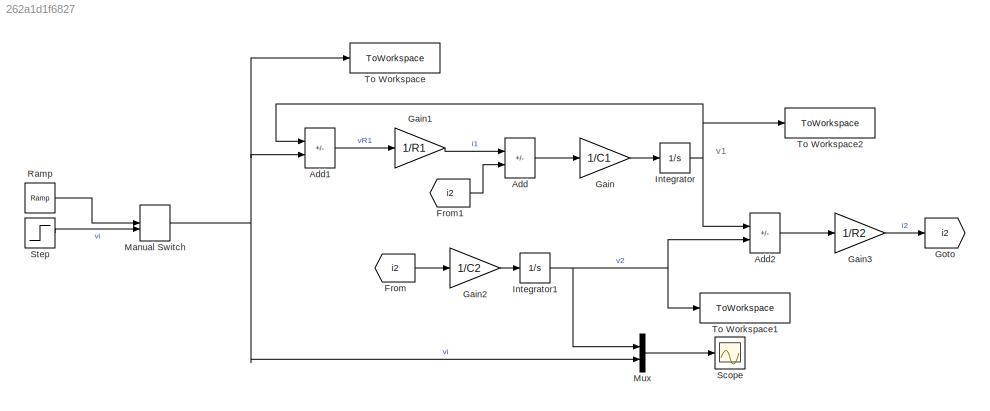
MODEL slx_262a1d1f6827
KIND model
CONFIG AbsTol = auto
CONFIG EnableMultiTasking = off
CONFIG FixedStep = 0.01
CONFIG MaxStep = auto
CONFIG MinStep = auto
CONFIG RelTol = 1e-3
CONFIG SampleTimeConstraint = Unconstrained
CONFIG SolverName = VariableStepAuto
CONFIG StartTime = 0.0
CONFIG StopTime = 40
BLOCK [Sum] Add
  IconShape = rectangular
  Inputs = +-
BLOCK [Sum] Add1
  IconShape = rectangular
  Inputs = -+
BLOCK [Sum] Add2
  IconShape = rectangular
  Inputs = +-
BLOCK [From] From
  GotoTag = i2
BLOCK [From] From1
  GotoTag = i2
BLOCK [Gain] Gain
  Gain = 1/C1
BLOCK [Gain] Gain1
  Gain = 1/R1
BLOCK [Gain] Gain2
  Gain = 1/C2
BLOCK [Gain] Gain3
  Gain = 1/R2
BLOCK [Goto] Goto
  GotoTag = i2
BLOCK [Integrator] Integrator
BLOCK [Integrator] Integrator1
BLOCK [ManualSwitch] Manual Switch
  CurrentSetting = 0
BLOCK [Mux] Mux
  DisplayOption = bar
  Inputs = 2
BLOCK [Reference] Ramp  REF=simulink/Sources/Ramp
  SourceBlock = simulink/Sources/Ramp
  SourceType = Ramp
BLOCK [Scope] Scope
  Floating = off
  NumInputPorts = 1
  ScopeSpecificationString = Simulink.scopes.TimeScopeBlockCfg('CurrentConfiguration', extmgr.ConfigurationSet(extmgr.Configuration('Core','General UI',true),extmgr.Configuration('Core','Source UI',true),extmgr.Configuration('Sources','WiredSimulink',true),extmgr.Configuration('Visuals','Time Domain',true,'SerializedDisplays',{struct('MinYLimReal','-1.21118','MaxYLimReal','8.29756','YLabelReal','','MinYLimMag','0.00000','MaxY...<+1404ch>
BLOCK [Step] Step
  After = 7
  SampleTime = 0
BLOCK [ToWorkspace] To Workspace
  FixptAsFi = on
  MaxDataPoints = inf
  SampleTime = -1
  SaveFormat = Structure With Time
  VariableName = vin
BLOCK [ToWorkspace] To Workspace1
  FixptAsFi = on
  MaxDataPoints = inf
  SampleTime = -1
  SaveFormat = Structure With Time
  VariableName = v2
BLOCK [ToWorkspace] To Workspace2
  FixptAsFi = on
  MaxDataPoints = inf
  SampleTime = -1
  SaveFormat = Structure With Time
  VariableName = v1
ANNOTATION (root): v1
LINE Add1:1 -> Gain1:1
LINE Add2:1 -> Gain3:1
LINE Add:1 -> Gain:1
LINE From1:1 -> Add:2
LINE From:1 -> Gain2:1
LINE Gain1:1 -> Add:1
LINE Gain2:1 -> Integrator1:1
LINE Gain3:1 -> Goto:1
LINE Gain:1 -> Integrator:1
NET Integrator1:1 -> Add2:2, Mux:1, To Workspace1:1
NET Integrator:1 -> Add1:1, Add2:1, To Workspace2:1
NET Manual Switch:1 -> Add1:2, Mux:2, To Workspace:1
LINE Mux:1 -> Scope:1
LINE Ramp:1 -> Manual Switch:1
LINE Step:1 -> Manual Switch:2
note: NET lines group one-source signal fan-out (src -> all destinations, sorted); 1:1 wires keep LINE
